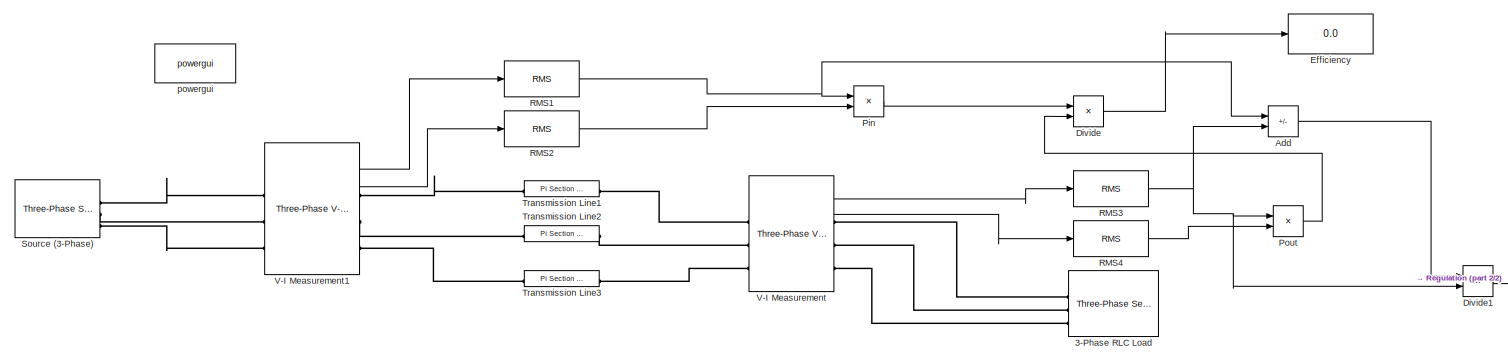
[diagram: root canvas - part 1/2, most of the canvas]
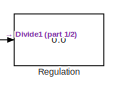
[diagram: root canvas - part 2/2, bottom right region]
MODEL slx_d84c464c4d37
KIND model
CONFIG AbsTol = auto
CONFIG EnableMultiTasking = off
CONFIG FixedStep = auto
CONFIG MaxStep = auto
CONFIG MinStep = auto
CONFIG RelTol = 1e-3
CONFIG SampleTimeConstraint = Unconstrained
CONFIG SolverName = VariableStepAuto
CONFIG StartTime = 0.0
CONFIG StopTime = 1
BLOCK [Reference]  V-I Measurement  REF=spsThreePhaseVIMeasurementLib/Three-Phase
V-I Measurement
  LibrarySourceBlock = sps_lib/Sensors and Measurements/Three-Phase\nV-I Measurement
  SourceBlock = spsThreePhaseVIMeasurementLib/Three-Phase\nV-I Measurement
  SourceType = Three-Phase VI Measurement
BLOCK [Reference]  V-I Measurement1  REF=spsThreePhaseVIMeasurementLib/Three-Phase
V-I Measurement
  LibrarySourceBlock = sps_lib/Sensors and Measurements/Three-Phase\nV-I Measurement
  SourceBlock = spsThreePhaseVIMeasurementLib/Three-Phase\nV-I Measurement
  SourceType = Three-Phase VI Measurement
BLOCK [Reference] 3-Phase RLC Load  REF=spsThreePhaseSeriesRLCLoadLib/Three-Phase
Series RLC Load
  AttributesFormatString = \n
  LibrarySourceBlock = sps_lib/Passives/Three-Phase\nSeries RLC Load
  SourceBlock = spsThreePhaseSeriesRLCLoadLib/Three-Phase\nSeries RLC Load
  SourceType = Three-Phase Series RLC Load
BLOCK [Sum] Add
  IconShape = rectangular
  Inputs = +-
BLOCK [Product] Divide
  Inputs = /*
BLOCK [Product] Divide1
  Inputs = */
BLOCK [Display] Efficiency
  Decimation = 1
BLOCK [Product] Pin
BLOCK [Product] Pout
BLOCK [Reference] RMS1  REF=dspstat3/RMS
  SourceBlock = dspstat3/RMS
  SourceType = RMS
  UserDataPersistent = on
BLOCK [Reference] RMS2  REF=dspstat3/RMS
  SourceBlock = dspstat3/RMS
  SourceType = RMS
  UserDataPersistent = on
BLOCK [Reference] RMS3  REF=dspstat3/RMS
  SourceBlock = dspstat3/RMS
  SourceType = RMS
  UserDataPersistent = on
BLOCK [Reference] RMS4  REF=dspstat3/RMS
  SourceBlock = dspstat3/RMS
  SourceType = RMS
  UserDataPersistent = on
BLOCK [Display] Regulation
  Decimation = 1
BLOCK [Reference] Source (3-Phase)  REF=spsThreePhaseSourceLib/Three-Phase Source
  LibrarySourceBlock = sps_lib/Sources/Three-Phase Source
  SourceBlock = spsThreePhaseSourceLib/Three-Phase Source
  SourceType = Three-Phase Source
BLOCK [Reference] Transmission Line1  REF=spsPiSectionLineLib/Pi Section Line
  AttributesFormatString = \n
  LibrarySourceBlock = sps_lib/Power Grid Elements/Pi Section Line
  SourceBlock = spsPiSectionLineLib/Pi Section Line
  SourceType = Pi Section Line
BLOCK [Reference] Transmission Line2  REF=spsPiSectionLineLib/Pi Section Line
  AttributesFormatString = \n
  LibrarySourceBlock = sps_lib/Power Grid Elements/Pi Section Line
  SourceBlock = spsPiSectionLineLib/Pi Section Line
  SourceType = Pi Section Line
BLOCK [Reference] Transmission Line3  REF=spsPiSectionLineLib/Pi Section Line
  AttributesFormatString = \n
  LibrarySourceBlock = sps_lib/Power Grid Elements/Pi Section Line
  SourceBlock = spsPiSectionLineLib/Pi Section Line
  SourceType = Pi Section Line
BLOCK [Reference] powergui  REF=spspowerguiLib/powergui
  LibrarySourceBlock = sps_lib/powergui
  Priority = 1
  SourceBlock = spspowerguiLib/powergui
  SourceType = PSB option menu block
LINE  V-I Measurement1:1 -> RMS1:1
LINE  V-I Measurement1:2 -> RMS2:1
LINE  V-I Measurement:1 -> RMS3:1
LINE  V-I Measurement:2 -> RMS4:1
LINE Add:1 -> Divide1:1
LINE Divide1:1 -> Regulation:1
LINE Divide:1 -> Efficiency:1
LINE Pin:1 -> Divide:1
LINE Pout:1 -> Divide:2
NET RMS1:1 -> Add:1, Pin:1
LINE RMS2:1 -> Pin:2
NET RMS3:1 -> Add:2, Divide1:2, Pout:1
LINE RMS4:1 -> Pout:2
PLINE  V-I Measurement1:LConn1 -- Source (3-Phase):RConn1
PLINE  V-I Measurement1:LConn2 -- Source (3-Phase):RConn2
PLINE  V-I Measurement1:LConn3 -- Source (3-Phase):RConn3
PLINE  V-I Measurement1:RConn1 -- Transmission Line1:LConn1
PLINE  V-I Measurement1:RConn2 -- Transmission Line2:LConn1
PLINE  V-I Measurement1:RConn3 -- Transmission Line3:LConn1
PLINE  V-I Measurement:LConn1 -- Transmission Line1:RConn1
PLINE  V-I Measurement:LConn2 -- Transmission Line2:RConn1
PLINE  V-I Measurement:LConn3 -- Transmission Line3:RConn1
PLINE  V-I Measurement:RConn1 -- 3-Phase RLC Load:LConn1
PLINE  V-I Measurement:RConn2 -- 3-Phase RLC Load:LConn2
PLINE  V-I Measurement:RConn3 -- 3-Phase RLC Load:LConn3
note: NET lines group one-source signal fan-out (src -> all destinations, sorted); 1:1 wires keep LINE
